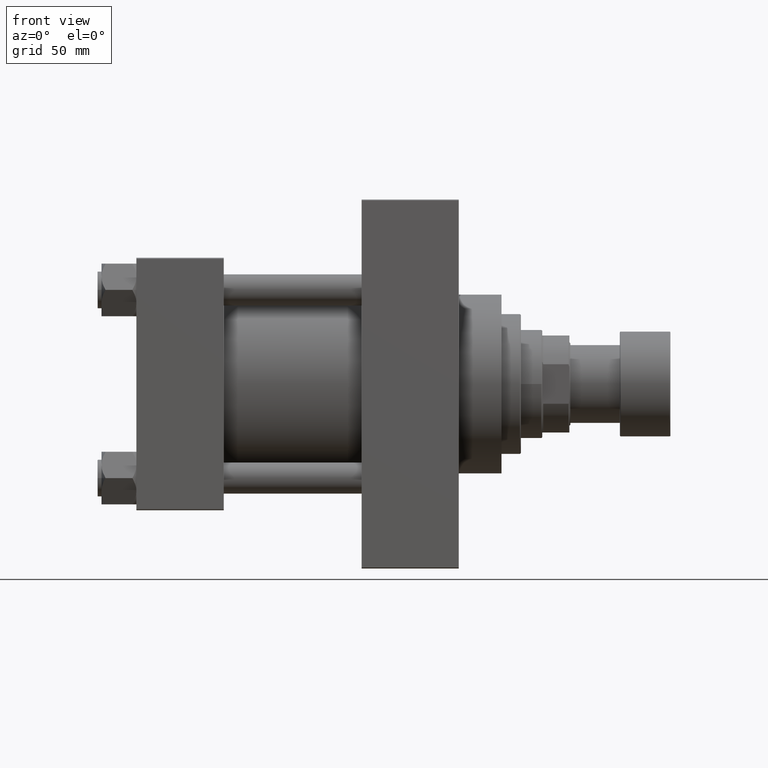
[diagram: clean part render]
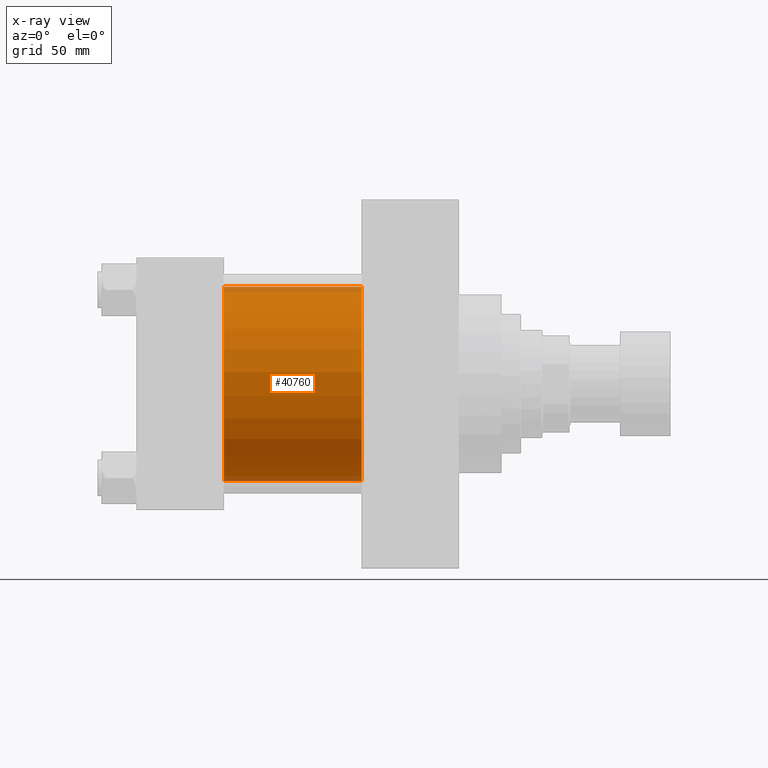
[diagram: x-ray — body ghosted, one internal face saturated and labeled with its STEP entity id]
A machine part, front view, then the same camera in x-ray: the body is ghosted and one INTERNAL B-rep face — a face not visible from any outside direction — is saturated and labeled: STEP entity #40760.
In plain terms, the highlighted cylindrical surface (partial cylindrical patch) has radius 50 mm, axis along (-1, -0, -0).
Its self-contained STEP definition (entity closure, byte-faithful):
#599 = CARTESIAN_POINT ( 'NONE',  ( 115.9999999999999858, -2.602085213965210642E-15, 0.000000000000000000 ) ) ;
#925 = DIRECTION ( 'NONE',  ( -1.000000000000000000, -0.000000000000000000, -0.000000000000000000 ) ) ;
#1184 = VERTEX_POINT ( 'NONE', #15197 ) ;
#3767 = DIRECTION ( 'NONE',  ( -1.000000000000000000, -0.000000000000000000, -0.000000000000000000 ) ) ;
#4762 = EDGE_CURVE ( 'NONE', #1184, #21232, #5008, .T. ) ;
#5008 = LINE ( 'NONE', #47440, #40583 ) ;
#6249 = EDGE_CURVE ( 'NONE', #38630, #38592, #10953, .T. ) ;
#8263 = AXIS2_PLACEMENT_3D ( 'NONE', #18573, #10651, #50521 ) ;
#8874 = AXIS2_PLACEMENT_3D ( 'NONE', #34943, #3767, #30874 ) ;
#9895 = CIRCLE ( 'NONE', #8263, 50.00000000000000000 ) ;
#10651 = DIRECTION ( 'NONE',  ( 1.000000000000000000, 0.000000000000000000, 0.000000000000000000 ) ) ;
#10953 = LINE ( 'NONE', #37797, #38197 ) ;
#15041 = DIRECTION ( 'NONE',  ( -1.000000000000000000, -0.000000000000000000, -0.000000000000000000 ) ) ;
#15197 = CARTESIAN_POINT ( 'NONE',  ( 115.9999999999999858, -2.602085213965210642E-15, 50.00000000000000000 ) ) ;
#16441 = DIRECTION ( 'NONE',  ( 0.000000000000000000, 0.000000000000000000, -1.000000000000000000 ) ) ;
#17062 = EDGE_LOOP ( 'NONE', ( #27884, #49778, #17066, #22544 ) ) ;
#17066 = ORIENTED_EDGE ( 'NONE', *, *, #45565, .F. ) ;
#18573 = CARTESIAN_POINT ( 'NONE',  ( 45.00000000000000000, -2.602085213965210642E-15, 0.000000000000000000 ) ) ;
#21232 = VERTEX_POINT ( 'NONE', #31651 ) ;
#22544 = ORIENTED_EDGE ( 'NONE', *, *, #4762, .F. ) ;
#27884 = ORIENTED_EDGE ( 'NONE', *, *, #49202, .T. ) ;
#30874 = DIRECTION ( 'NONE',  ( 0.000000000000000000, 0.000000000000000000, 1.000000000000000000 ) ) ;
#31651 = CARTESIAN_POINT ( 'NONE',  ( 45.00000000000000000, -2.602085213965210642E-15, 50.00000000000000000 ) ) ;
#31916 = CARTESIAN_POINT ( 'NONE',  ( 115.9999999999999858, 3.521148781771555838E-15, -50.00000000000000000 ) ) ;
#34943 = CARTESIAN_POINT ( 'NONE',  ( 115.9999999999999858, -2.602085213965210642E-15, 0.000000000000000000 ) ) ;
#35682 = CYLINDRICAL_SURFACE ( 'NONE', #8874, 50.00000000000000000 ) ;
#37748 = CIRCLE ( 'NONE', #48353, 50.00000000000000000 ) ;
#37797 = CARTESIAN_POINT ( 'NONE',  ( 115.9999999999999858, 3.521148781771555838E-15, -50.00000000000000000 ) ) ;
#38197 = VECTOR ( 'NONE', #15041, 1000.000000000000000 ) ;
#38592 = VERTEX_POINT ( 'NONE', #39582 ) ;
#38630 = VERTEX_POINT ( 'NONE', #31916 ) ;
#39582 = CARTESIAN_POINT ( 'NONE',  ( 45.00000000000000000, 3.521148781771555838E-15, -50.00000000000000000 ) ) ;
#40583 = VECTOR ( 'NONE', #925, 1000.000000000000000 ) ;
#40760 = ADVANCED_FACE ( 'NONE', ( #43118 ), #35682, .F. ) ;
#43118 = FACE_OUTER_BOUND ( 'NONE', #17062, .T. ) ;
#43783 = DIRECTION ( 'NONE',  ( 1.000000000000000000, 0.000000000000000000, 0.000000000000000000 ) ) ;
#45565 = EDGE_CURVE ( 'NONE', #21232, #38592, #9895, .T. ) ;
#47440 = CARTESIAN_POINT ( 'NONE',  ( 115.9999999999999858, -2.602085213965210642E-15, 50.00000000000000000 ) ) ;
#48353 = AXIS2_PLACEMENT_3D ( 'NONE', #599, #43783, #16441 ) ;
#49202 = EDGE_CURVE ( 'NONE', #1184, #38630, #37748, .T. ) ;
#49778 = ORIENTED_EDGE ( 'NONE', *, *, #6249, .T. ) ;
#50521 = DIRECTION ( 'NONE',  ( 0.000000000000000000, 0.000000000000000000, -1.000000000000000000 ) ) ;